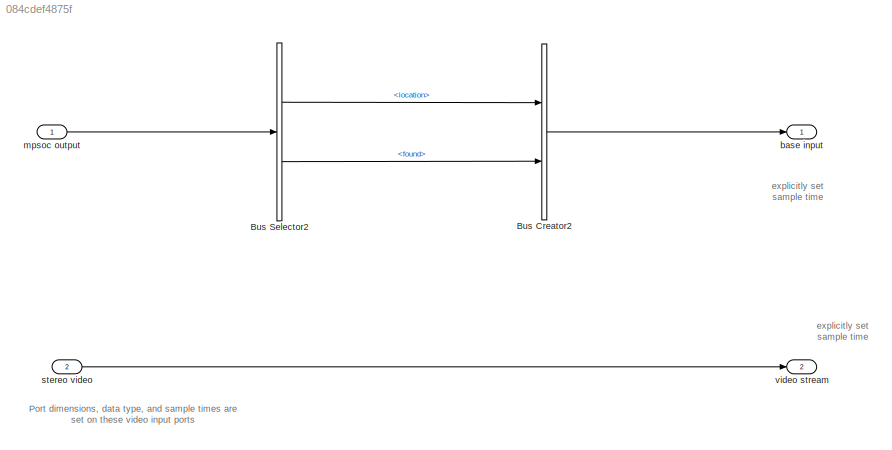
MODEL slx_084cdef4875f
KIND model
WORKSPACE source: MAT-file member
WORKSPACE ini_block_hpos = -0.4
BLOCK [BusCreator] Bus Creator2
  DisplayOption = bar
  Inputs = 2
  Ports = [2, 1]
BLOCK [BusSelector] Bus Selector2
  OutputSignals = location,found
  Ports = [1, 2]
BLOCK [Outport] base input
  BusOutputAsStruct = on
  IconDisplay = Port number
  OutDataTypeStr = Bus: slBusStereoOps
  SampleTime = 0.1
BLOCK [Inport] mpsoc output
  IconDisplay = Port number
  OutDataTypeStr = Bus: slBusStereoOps
BLOCK [Inport] stereo video
  IconDisplay = Port number
  OutDataTypeStr = uint8
  Port = 2
  PortDimensions = [400 240 6]
  SampleTime = 0.1
BLOCK [Outport] video stream
  IconDisplay = Port number
  Port = 2
  SampleTime = 0.1
ANNOTATION (root): Port dimensions, data type, and sample times are set on these video input ports
ANNOTATION (root): explicitly set sample time
LINE Bus Creator2:1 -> base input:1
LINE Bus Selector2:1 -> Bus Creator2:1
LINE Bus Selector2:2 -> Bus Creator2:2
LINE mpsoc output:1 -> Bus Selector2:1
LINE stereo video:1 -> video stream:1
